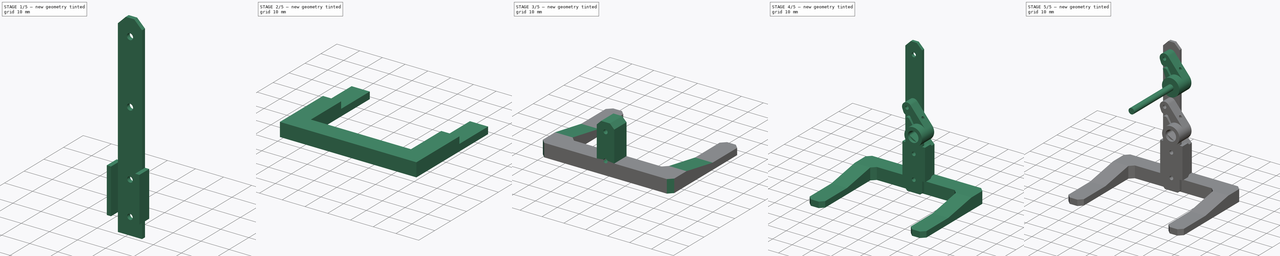
[diagram: build sequence overview — one tinted view per stage of 5, left to right]
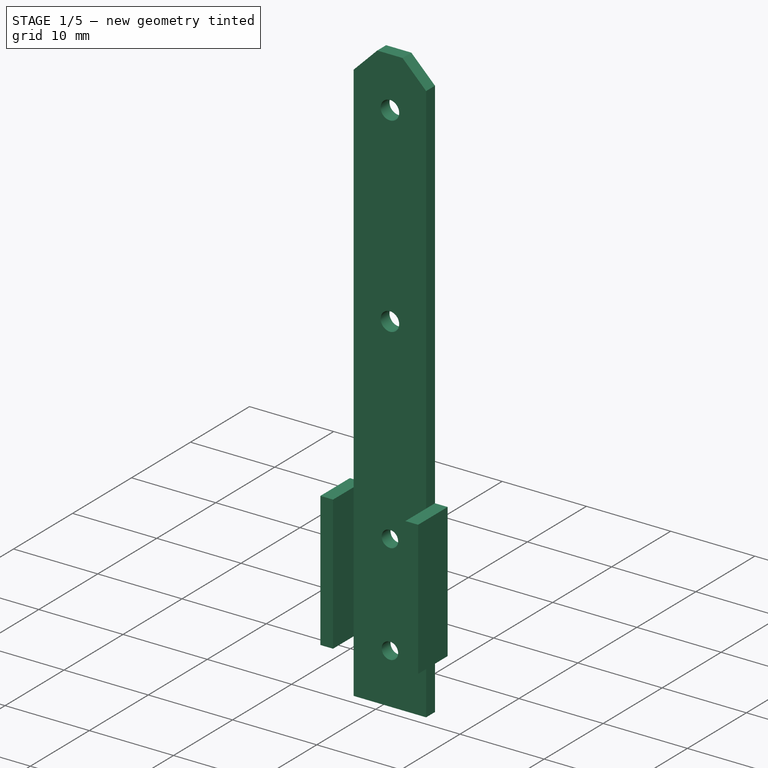
[diagram: stage 1 of 5 — iso view after this stage's code; geometry added in this stage tinted green]
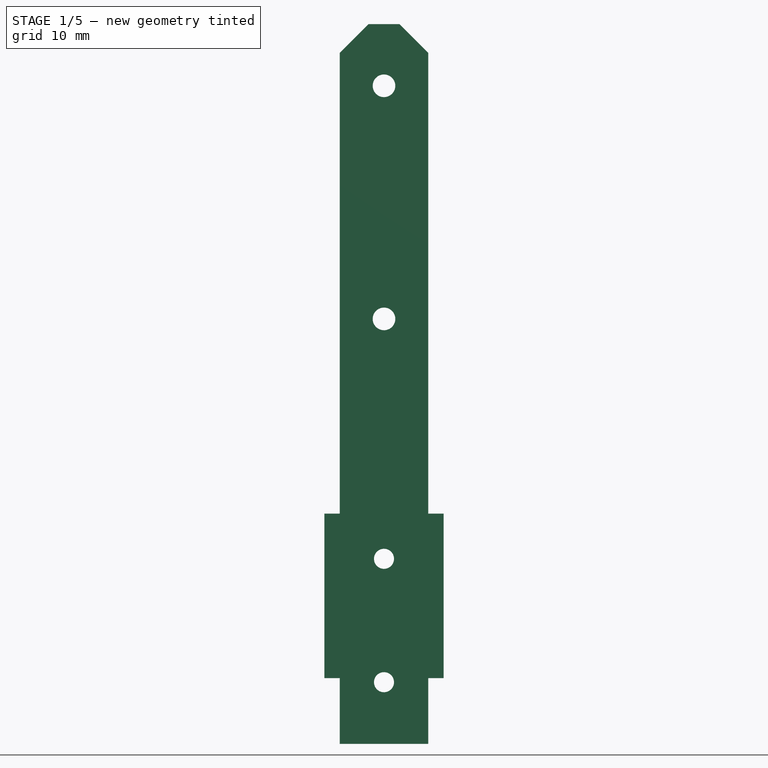
[diagram: stage 1 of 5 — front view after this stage's code; geometry added in this stage tinted green]
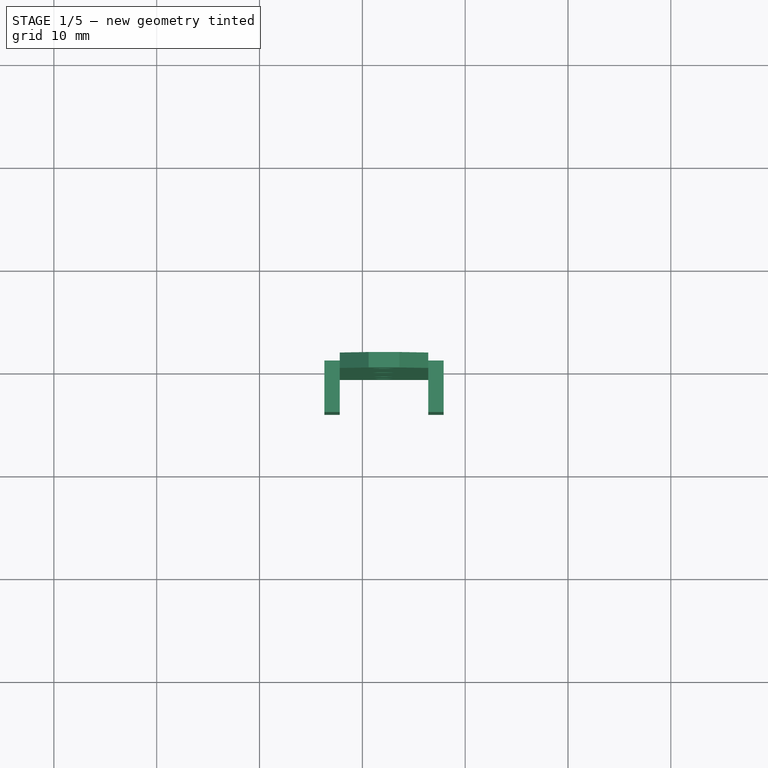
[diagram: stage 1 of 5 — top view after this stage's code; geometry added in this stage tinted green]
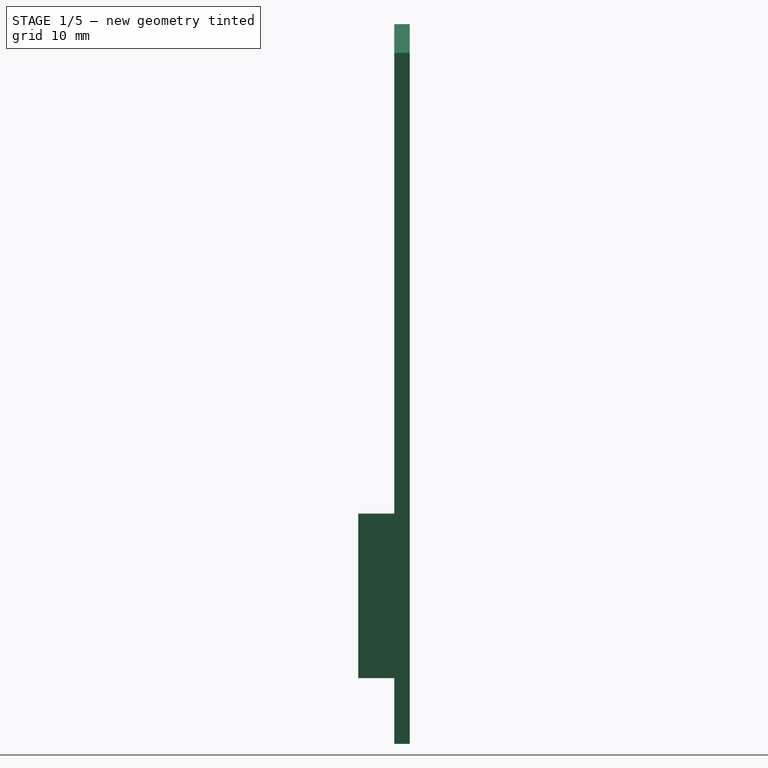
[diagram: stage 1 of 5 — right view after this stage's code; geometry added in this stage tinted green]
FCSTD DOCUMENT  (FreeCAD 2022.709R28846 (Git))
Label: robot_parallel_crank_01
License: Other
objects: Sketcher::SketchObject×8, PartDesign::Pad×7, PartDesign::SubShapeBinder×5, Part::FeaturePython×4, Part::Feature×3, PartDesign::Body×3, PartDesign::Chamfer×3, PartDesign::Plane×1, PartDesign::Draft×1, PartDesign::Pocket×1
note: 60 computed .brp shape members not serialized (recipe doc carries the construction recipe); baked Part::Feature solids carry a one-line shape summary decoded from their .brp

FEATURE [PartDesign::SubShapeBinder] Binder001  label="Binder001(link_free_grip_left)"
  BindCopyOnChange = 0
  BindMode = 0
  ClaimChildren = false
  Context = -> Body002 [Binder001.]
  FillStyle = 0
  Fuse = false
  MakeFace = true
  OffsetFill = false
  OffsetIntersection = false
  OffsetJoinType = 0
  OffsetOpenResult = false
  PartialLoad = false
  Relative = true
  Support = -> [Aruku_link_free_grip_v1001_solid]
  TreeRank = 63
  _Version = 8
FEATURE [PartDesign::SubShapeBinder] Binder002  label="Binder002(link_motor_60deg_left)"
  BindCopyOnChange = 0
  BindMode = 0
  ClaimChildren = false
  Context = -> Body002 [Binder002.]
  FillStyle = 0
  Fuse = false
  MakeFace = true
  OffsetFill = false
  OffsetIntersection = false
  OffsetJoinType = 0
  OffsetOpenResult = false
  PartialLoad = false
  Relative = true
  Support = -> [Aruku_link_motor_60deg_v1001_solid]
  TreeRank = 64
  _Version = 8
FEATURE [PartDesign::SubShapeBinder] Binder003  label="Binder003(motor)"
  BindCopyOnChange = 0
  BindMode = 0
  ClaimChildren = false
  Context = -> Body002 [Binder003.]
  FillStyle = 0
  Fuse = false
  MakeFace = true
  OffsetFill = false
  OffsetIntersection = false
  OffsetJoinType = 0
  OffsetOpenResult = false
  PartialLoad = false
  Relative = true
  Support = -> [Compound]
  TreeRank = 65
  _Version = 8
FEATURE [Sketcher::SketchObject] Sketch006
  ArcFitTolerance = 1e-06
  AttachmentSupport = -> [Binder003]
  ExternalGeometry = -> [Binder003]
  FullyConstrained = true
  MapMode = 5
  Placement = pos=(-7.1145e-05,-19.1,0.000123226) rot=(1,-2e-06,-2e-06;1.57079rad)
  Support = -> [Binder003]
  TreeRank = 66
  sketch-geometry (10):
    g0: LineSegment StartX=7.80606 StartY=0.518036 StartZ=0 EndX=16.4061 EndY=0.518036 EndZ=0
    g1: LineSegment StartX=16.4061 StartY=0.518036 StartZ=0 EndX=16.4061 EndY=-69.482 EndZ=0
    g2: LineSegment StartX=16.4061 StartY=-69.482 StartZ=0 EndX=7.80606 EndY=-69.482 EndZ=0
    g3: LineSegment StartX=7.80606 StartY=-69.482 StartZ=0 EndX=7.80606 EndY=0.518036 EndZ=0
    g4: Circle CenterX=12.1061 CenterY=-5.48196 CenterZ=0 NormalX=0 NormalY=0 NormalZ=1 AngleXU=0 Radius=1.1
    g5: Circle CenterX=12.1061 CenterY=-28.152 CenterZ=0 NormalX=0 NormalY=0 NormalZ=1 AngleXU=0 Radius=1.1
    g6: LineSegment [constr] StartX=12.1061 StartY=-5.48196 StartZ=0 EndX=16.4061 EndY=-5.48196 EndZ=0
    g7: LineSegment [constr] StartX=12.1061 StartY=-5.48196 StartZ=0 EndX=7.80606 EndY=-5.48196 EndZ=0
    g8: Circle CenterX=12.1061 CenterY=-51.482 CenterZ=0 NormalX=0 NormalY=0 NormalZ=1 AngleXU=0 Radius=0.975
    g9: Circle CenterX=12.1061 CenterY=-63.482 CenterZ=0 NormalX=0 NormalY=0 NormalZ=1 AngleXU=0 Radius=0.975
  constraints (30):
    c: Coincident(g0,g1)
    c: Coincident(g1,g2)
    c: Coincident(g2,g3)
    c: Coincident(g3,g0)
    c: Horizontal(g0)
    c: Horizontal(g2)
    c: Vertical(g1)
    c: Vertical(g3)
    c: DistanceX(g2,g2) = 8.6
    c: Vertical(g5,g4)
    c: Diameter(g4) = 2.2
    c: Equal(g4,g5)
    c: Horizontal(g4,g-4)
    c: Horizontal(g5,g-3)
    c: Coincident(g6,g4)
    c: PointOnObject(g6,g1)
    c: Horizontal(g6)
    c: Coincident(g7,g4)
    c: PointOnObject(g7,g3)
    c: Horizontal(g7)
    c: Equal(g7,g6)
    c: Distance(g4,g0) = 6
    c: DistanceX(g-4,g4) = 12
    c: DistanceY(g3,g3) = 70
    c: Vertical(g9,g8)
    c: Vertical(g8,g5)
    c: Diameter(g8) = 1.95
    c: Equal(g8,g9)
    c: DistanceY(g9,g8) = 12
    c: Distance(g9,g2) = 6
FEATURE [PartDesign::Pad] Pad005
  ClaimChildren = false
  Direction = (1,1,1)
  Fit = 0
  FitJoin = 0
  InnerFit = 0
  InnerFitJoin = 0
  InnerTaperAngle = 0
  InnerTaperAngleRev = 0
  Length = 1.5
  Length2 = 100
  Linearize = true
  NewSolid = false
  Profile = -> Sketch006
  Suppress = false
  TreeRank = 67
  Type = 0
  _ProfileBasedVersion = 1
FEATURE [Sketcher::SketchObject] Sketch007
  ArcFitTolerance = 1e-06
  AttachmentSupport = -> [Pad005]
  ExternalGeometry = -> [Pad005]
  FullyConstrained = true
  MapMode = 5
  Placement = pos=(-7.1145e-05,-19.1,0.000123226) rot=(1e-06,0.707109,0.707105;3.14159rad)
  Support = -> [Pad005]
  TreeRank = 68
  sketch-geometry (8):
    g0: LineSegment StartX=-16.4061 StartY=-47.082 StartZ=0 EndX=-17.9061 EndY=-47.082 EndZ=0
    g1: LineSegment StartX=-17.9061 StartY=-47.082 StartZ=0 EndX=-17.9061 EndY=-63.082 EndZ=0
    g2: LineSegment StartX=-17.9061 StartY=-63.082 StartZ=0 EndX=-16.4061 EndY=-63.082 EndZ=0
    g3: LineSegment StartX=-16.4061 StartY=-63.082 StartZ=0 EndX=-16.4061 EndY=-47.082 EndZ=0
    g4: LineSegment StartX=-7.80606 StartY=-47.082 StartZ=0 EndX=-6.30606 EndY=-47.082 EndZ=0
    g5: LineSegment StartX=-6.30606 StartY=-47.082 StartZ=0 EndX=-6.30606 EndY=-63.082 EndZ=0
    g6: LineSegment StartX=-6.30606 StartY=-63.082 StartZ=0 EndX=-7.80606 EndY=-63.082 EndZ=0
    g7: LineSegment StartX=-7.80606 StartY=-63.082 StartZ=0 EndX=-7.80606 EndY=-47.082 EndZ=0
  constraints (24):
    c: Coincident(g0,g1)
    c: Coincident(g1,g2)
    c: Coincident(g2,g3)
    c: Coincident(g3,g0)
    c: Horizontal(g0)
    c: Horizontal(g2)
    c: Vertical(g1)
    c: Vertical(g3)
    c: PointOnObject(g0,g-3)
    c: Coincident(g4,g5)
    c: Coincident(g5,g6)
    c: Coincident(g6,g7)
    c: Coincident(g7,g4)
    c: Horizontal(g4)
    c: Horizontal(g6)
    c: Vertical(g5)
    c: Vertical(g7)
    c: PointOnObject(g4,g-4)
    c: Equal(g7,g3)
    c: Equal(g0,g4)
    c: Horizontal(g2,g6)
    c: DistanceX(g0,g0) = 1.5
    c: DistanceY(g-5,g2) = 0.4
    c: DistanceY(g1,g1) = 16
FEATURE [PartDesign::Pad] Pad006
  BaseFeature = -> Pad005
  ClaimChildren = false
  Direction = (1,1,1)
  Fit = 0
  FitJoin = 0
  InnerFit = 0
  InnerFitJoin = 0
  InnerTaperAngle = 0
  InnerTaperAngleRev = 0
  Length = 5
  Length2 = 4
  Linearize = true
  NewSolid = false
  Profile = -> Sketch007
  Refine = true
  Reversed = true
  Suppress = false
  TreeRank = 69
  Type = 0
  _ProfileBasedVersion = 1
FEATURE [PartDesign::Chamfer] Chamfer001
  Angle = 45
  Base = -> Pad006 [Edge2,Edge1]
  BaseFeature = -> Pad006
  ChamferType = 0
  FlipDirection = false
  NewSolid = false
  Size = 2.8
  Size2 = 1
  SupportTransform = false
  Suppress = false
  TreeRank = 70
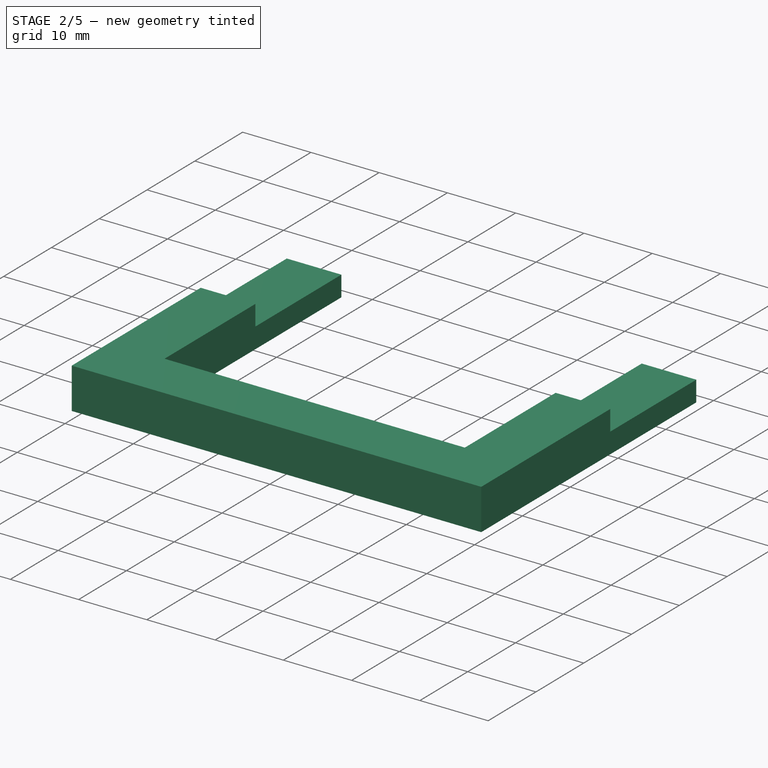
[diagram: stage 2 of 5 — iso view after this stage's code; geometry added in this stage tinted green]
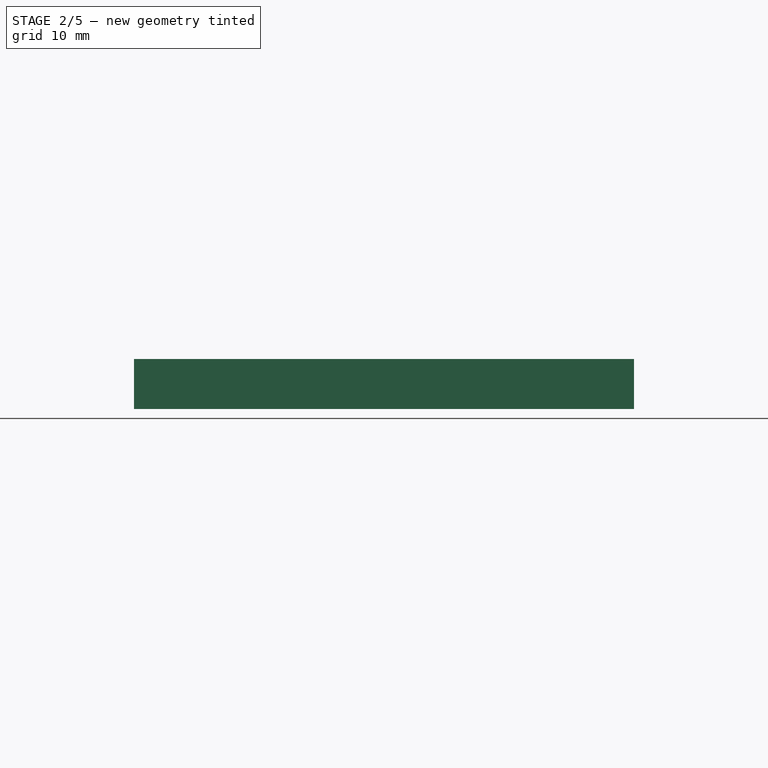
[diagram: stage 2 of 5 — front view after this stage's code; geometry added in this stage tinted green]
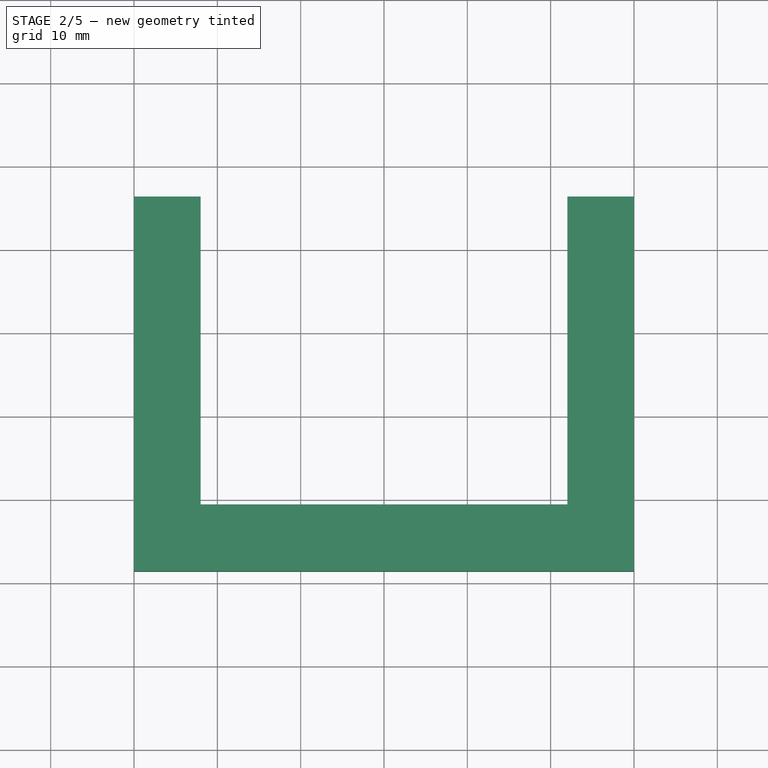
[diagram: stage 2 of 5 — top view after this stage's code; geometry added in this stage tinted green]
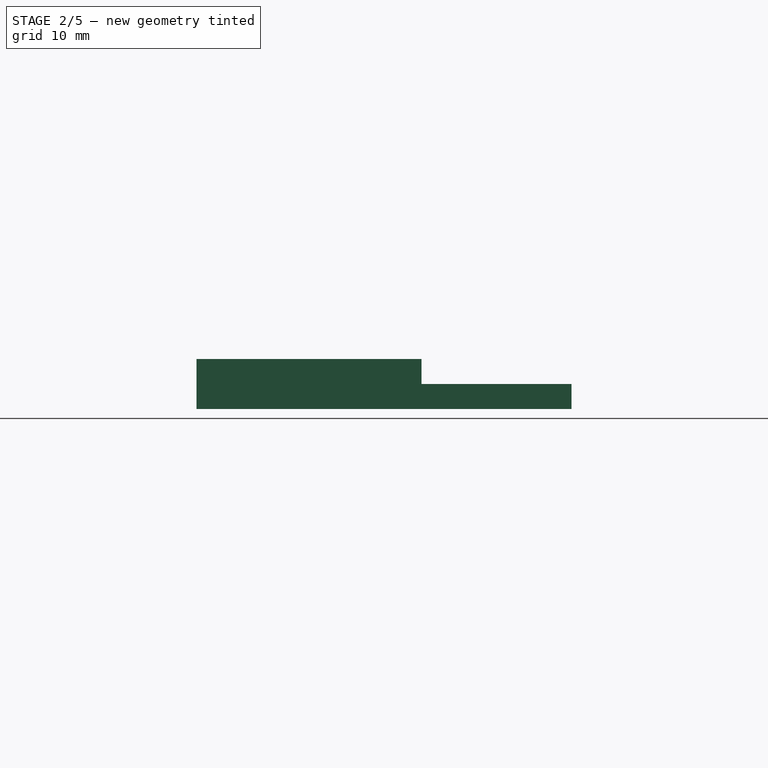
[diagram: stage 2 of 5 — right view after this stage's code; geometry added in this stage tinted green]
FEATURE [PartDesign::Chamfer] Chamfer002
  Angle = 45
  Base = -> Chamfer001 [Edge44,Edge54,Edge51,Edge41,Edge56,Edge55]
  BaseFeature = -> Chamfer001
  ChamferType = 0
  FlipDirection = false
  NewSolid = false
  Size = 1
  Size2 = 1
  SupportTransform = false
  Suppress = false
  TreeRank = 71
FEATURE [PartDesign::SubShapeBinder] Binder004  label="Binder004(leg_left)"
  BindCopyOnChange = 0
  BindMode = 0
  ClaimChildren = false
  Context = -> Body [Binder004.]
  FillStyle = 0
  Fuse = false
  MakeFace = true
  OffsetFill = false
  OffsetIntersection = false
  OffsetJoinType = 0
  OffsetOpenResult = false
  PartialLoad = false
  Relative = true
  Support = -> [Body002]
  TreeRank = 73
  _Version = 8
FEATURE [Sketcher::SketchObject] Sketch
  ArcFitTolerance = 1e-06
  AttachmentSupport = -> [Binder004]
  ExternalGeometry = -> [Binder004]
  FullyConstrained = true
  MapMode = 5
  Placement = pos=(0,-5.28799e-07,-0.0819635) rot=(1,0,0;3.14159rad)
  Support = -> [Binder004]
  TreeRank = 18
  sketch-geometry (9):
    g0: LineSegment StartX=-30 StartY=28.6005 StartZ=0 EndX=-30 EndY=-16.3995 EndZ=0
    g1: LineSegment StartX=-30 StartY=-16.3995 StartZ=0 EndX=-22 EndY=-16.3995 EndZ=0
    g2: LineSegment StartX=-22 StartY=-16.3995 StartZ=0 EndX=-22 EndY=20.6005 EndZ=0
    g3: LineSegment StartX=-22 StartY=20.6005 StartZ=0 EndX=22 EndY=20.6005 EndZ=0
    g4: LineSegment StartX=22 StartY=20.6005 StartZ=0 EndX=22 EndY=-16.3995 EndZ=0
    g5: LineSegment StartX=22 StartY=-16.3995 StartZ=0 EndX=30 EndY=-16.3995 EndZ=0
    g6: LineSegment StartX=30 StartY=-16.3995 StartZ=0 EndX=30 EndY=28.6005 EndZ=0
    g7: LineSegment StartX=30 StartY=28.6005 StartZ=0 EndX=-30 EndY=28.6005 EndZ=0
    g8: LineSegment [constr] StartX=-22 StartY=20.6005 StartZ=0 EndX=-22 EndY=28.6005 EndZ=0
  constraints (26):
    c: Vertical(g0)
    c: Coincident(g0,g1)
    c: Horizontal(g1)
    c: Coincident(g1,g2)
    c: Vertical(g2)
    c: Coincident(g2,g3)
    c: Horizontal(g3)
    c: Coincident(g3,g4)
    c: Vertical(g4)
    c: Coincident(g4,g5)
    c: Horizontal(g5)
    c: Coincident(g5,g6)
    c: Vertical(g6)
    c: Coincident(g6,g7)
    c: Coincident(g7,g0)
    c: Symmetric(g0,g6,g-2)
    c: DistanceX(g7,g7) = 60
    c: Equal(g0,g6)
    c: Equal(g5,g1)
    c: DistanceX(g1,g1) = 8
    c: Coincident(g8,g2)
    c: PointOnObject(g8,g7)
    c: Vertical(g8)
    c: Equal(g8,g1)
    c: DistanceY(g0,g0) = 45
    c: PointOnObject(g-3,g3)
FEATURE [PartDesign::Pad] Pad
  ClaimChildren = false
  Direction = (1,1,1)
  Fit = 0
  FitJoin = 0
  InnerFit = 0
  InnerFitJoin = 0
  InnerTaperAngle = 0
  InnerTaperAngleRev = 0
  Length = 3
  Length2 = 100
  Linearize = true
  NewSolid = false
  Profile = -> Sketch
  Reversed = true
  Suppress = false
  TreeRank = 19
  Type = 0
  _ProfileBasedVersion = 1
FEATURE [Sketcher::SketchObject] Sketch001
  ArcFitTolerance = 1e-06
  AttachmentSupport = -> [Pad]
  ExternalGeometry = -> [Pad]
  FullyConstrained = true
  MapMode = 5
  Placement = pos=(0,1.88261e-05,2.91804) rot=(-1,0,0;6e-06rad)
  Support = -> [Pad]
  TreeRank = 20
  sketch-geometry (8):
    g0: LineSegment StartX=-30 StartY=-1.60048 StartZ=0 EndX=-22 EndY=-1.60048 EndZ=0
    g1: LineSegment StartX=-22 StartY=-1.60048 StartZ=0 EndX=-22 EndY=-20.6005 EndZ=0
    g2: LineSegment StartX=-22 StartY=-20.6005 StartZ=0 EndX=22 EndY=-20.6005 EndZ=0
    g3: LineSegment StartX=22 StartY=-1.60048 StartZ=0 EndX=30 EndY=-1.60048 EndZ=0
    g4: LineSegment StartX=30 StartY=-1.60048 StartZ=0 EndX=30 EndY=-28.6005 EndZ=0
    g5: LineSegment StartX=30 StartY=-28.6005 StartZ=0 EndX=-30 EndY=-28.6005 EndZ=0
    g6: LineSegment StartX=-30 StartY=-28.6005 StartZ=0 EndX=-30 EndY=-1.60048 EndZ=0
    g7: LineSegment StartX=22 StartY=-20.6005 StartZ=0 EndX=22 EndY=-1.60048 EndZ=0
  constraints (20):
    c: PointOnObject(g0,g-5)
    c: PointOnObject(g0,g-4)
    c: Horizontal(g0)
    c: Coincident(g0,g1)
    c: Coincident(g1,g-4)
    c: Coincident(g1,g2)
    c: Coincident(g2,g-3)
    c: PointOnObject(g3,g-3)
    c: PointOnObject(g3,g-6)
    c: Horizontal(g3)
    c: Coincident(g3,g4)
    c: Coincident(g4,g-6)
    c: Coincident(g4,g5)
    c: Coincident(g5,g-5)
    c: Coincident(g5,g6)
    c: Coincident(g6,g0)
    c: Coincident(g7,g2)
    c: Coincident(g7,g3)
    c: Equal(g7,g1)
    c: DistanceY(g6,g6) = 27
FEATURE [PartDesign::Pad] Pad001
  BaseFeature = -> Pad
  ClaimChildren = false
  Direction = (1,1,1)
  Fit = 0
  FitJoin = 0
  InnerFit = 0
  InnerFitJoin = 0
  InnerTaperAngle = 0
  InnerTaperAngleRev = 0
  Length = 3
  Length2 = 100
  Linearize = true
  NewSolid = false
  Profile = -> Sketch001
  Suppress = false
  TreeRank = 21
  Type = 0
  _ProfileBasedVersion = 1
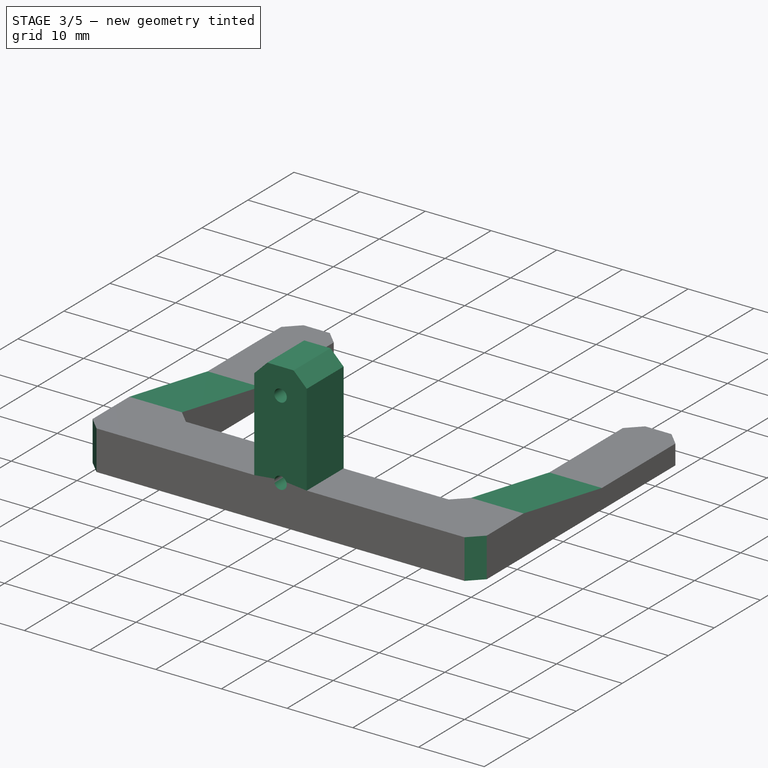
[diagram: stage 3 of 5 — iso view after this stage's code; geometry added in this stage tinted green]
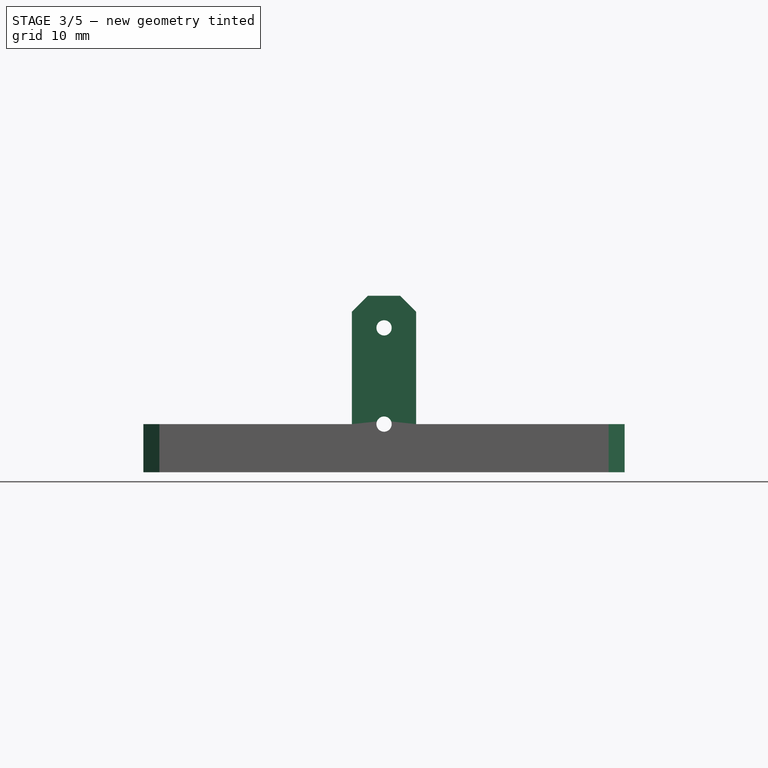
[diagram: stage 3 of 5 — front view after this stage's code; geometry added in this stage tinted green]
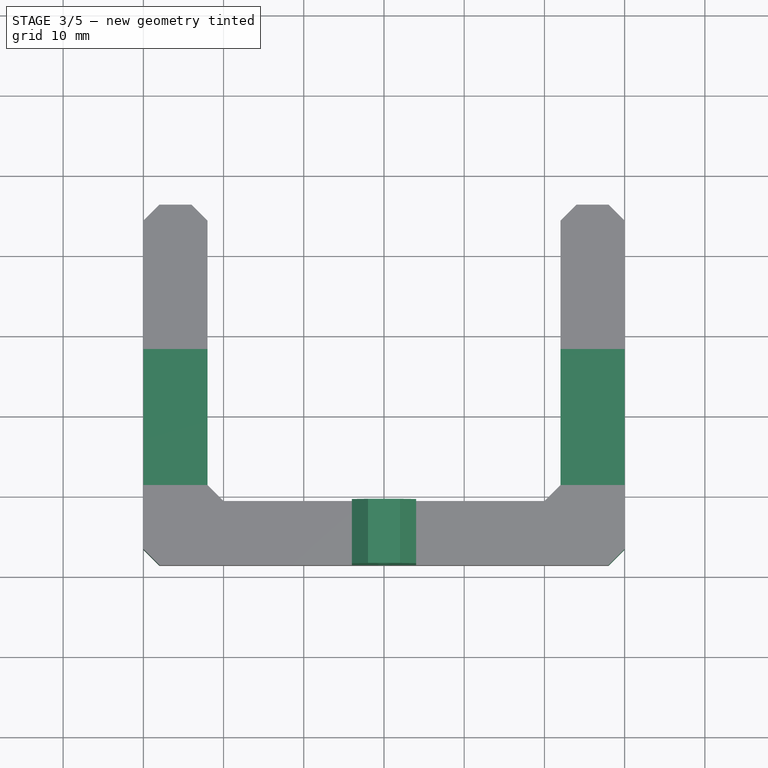
[diagram: stage 3 of 5 — top view after this stage's code; geometry added in this stage tinted green]
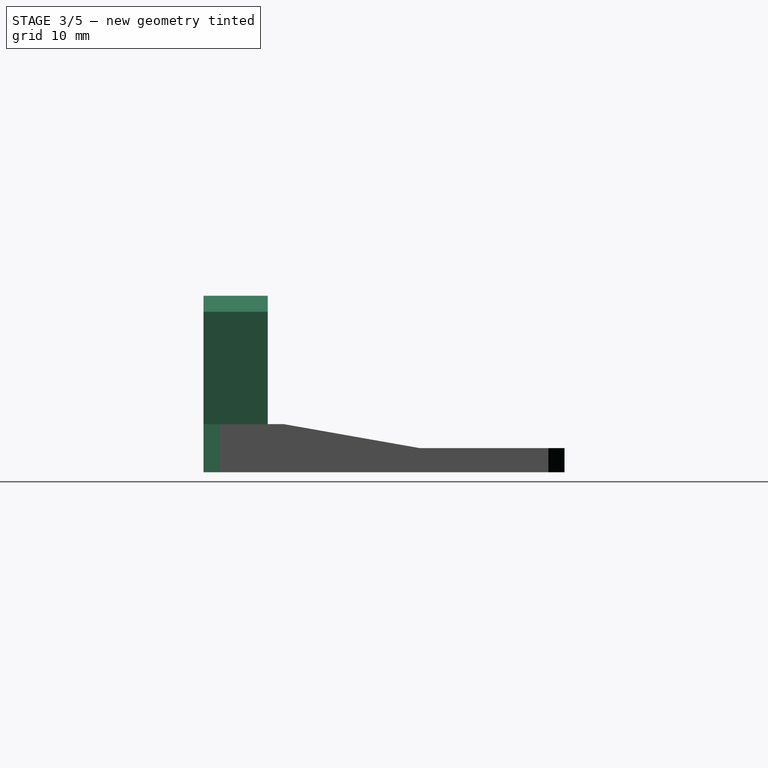
[diagram: stage 3 of 5 — right view after this stage's code; geometry added in this stage tinted green]
FEATURE [PartDesign::Draft] Draft
  Angle = 80
  Base = -> Pad001 [Face13,Face20]
  BaseFeature = -> Pad001
  NeutralPlane = -> Pad001 [Face15]
  NewSolid = false
  SupportTransform = false
  Suppress = false
  TreeRank = 22
FEATURE [Sketcher::SketchObject] Sketch002
  ArcFitTolerance = 1e-06
  AttachmentSupport = -> [Draft]
  ExternalGeometry = -> [Draft]
  FullyConstrained = true
  MapMode = 5
  Placement = pos=(0,3.8181e-05,5.91804) rot=(-1,0,0;6e-06rad)
  Support = -> [Draft]
  TreeRank = 23
  sketch-geometry (4):
    g0: LineSegment StartX=-4 StartY=-20.6005 StartZ=0 EndX=4 EndY=-20.6005 EndZ=0
    g1: LineSegment StartX=4 StartY=-20.6005 StartZ=0 EndX=4 EndY=-28.6005 EndZ=0
    g2: LineSegment StartX=4 StartY=-28.6005 StartZ=0 EndX=-4 EndY=-28.6005 EndZ=0
    g3: LineSegment StartX=-4 StartY=-28.6005 StartZ=0 EndX=-4 EndY=-20.6005 EndZ=0
  constraints (11):
    c: Coincident(g0,g1)
    c: Coincident(g1,g2)
    c: Coincident(g2,g3)
    c: Coincident(g3,g0)
    c: Horizontal(g2)
    c: Vertical(g1)
    c: Vertical(g3)
    c: PointOnObject(g0,g-3)
    c: PointOnObject(g1,g-4)
    c: Symmetric(g0,g0,g-2)
    c: DistanceX(g0,g0) = 8
FEATURE [PartDesign::Pad] Pad002
  BaseFeature = -> Draft
  ClaimChildren = false
  Direction = (1,1,1)
  Fit = 0
  FitJoin = 0
  InnerFit = 0
  InnerFitJoin = 0
  InnerTaperAngle = 0
  InnerTaperAngleRev = 0
  Length = 16
  Length2 = 100
  Linearize = true
  NewSolid = false
  Profile = -> Sketch002
  Suppress = false
  TreeRank = 24
  Type = 0
  _ProfileBasedVersion = 1
FEATURE [Sketcher::SketchObject] Sketch003
  ArcFitTolerance = 1e-06
  AttachmentSupport = -> [Pad002]
  ExternalGeometry = -> [Pad002,Binder004]
  FullyConstrained = true
  MapMode = 5
  Placement = pos=(0,-28.6005,0.00018452) rot=(1,0,0;1.57079rad)
  Support = -> [Pad002]
  TreeRank = 25
  sketch-geometry (2):
    g0: Circle CenterX=0.00598021 CenterY=17.918 CenterZ=0 NormalX=0 NormalY=0 NormalZ=1 AngleXU=0 Radius=0.95
    g1: Circle CenterX=0.00598021 CenterY=5.91804 CenterZ=0 NormalX=0 NormalY=0 NormalZ=1 AngleXU=0 Radius=0.95
  constraints (4):
    c: Diameter(g1) = 1.9
    c: Equal(g1,g0)
    c: Coincident(g-4,g0)
    c: Coincident(g1,g-5)
FEATURE [PartDesign::Pocket] Pocket
  BaseFeature = -> Pad002
  ClaimChildren = false
  Fit = 0
  FitJoin = 0
  InnerFit = 0
  InnerFitJoin = 0
  InnerTaperAngle = 0
  InnerTaperAngleRev = 0
  Length = 5
  Length2 = 100
  Linearize = true
  NewSolid = false
  Profile = -> Sketch003
  Refine = true
  Suppress = false
  TreeRank = 26
  Type = 1
  _ProfileBasedVersion = 1
FEATURE [PartDesign::Chamfer] Chamfer
  Angle = 45
  Base = -> Pocket [Edge16,Edge15,Edge2,Edge1,Edge56,Edge55,Edge41,Edge31,Edge45,Edge46]
  BaseFeature = -> Pocket
  ChamferType = 0
  FlipDirection = false
  NewSolid = false
  Size = 2
  Size2 = 1
  SupportTransform = false
  Suppress = false
  TreeRank = 27
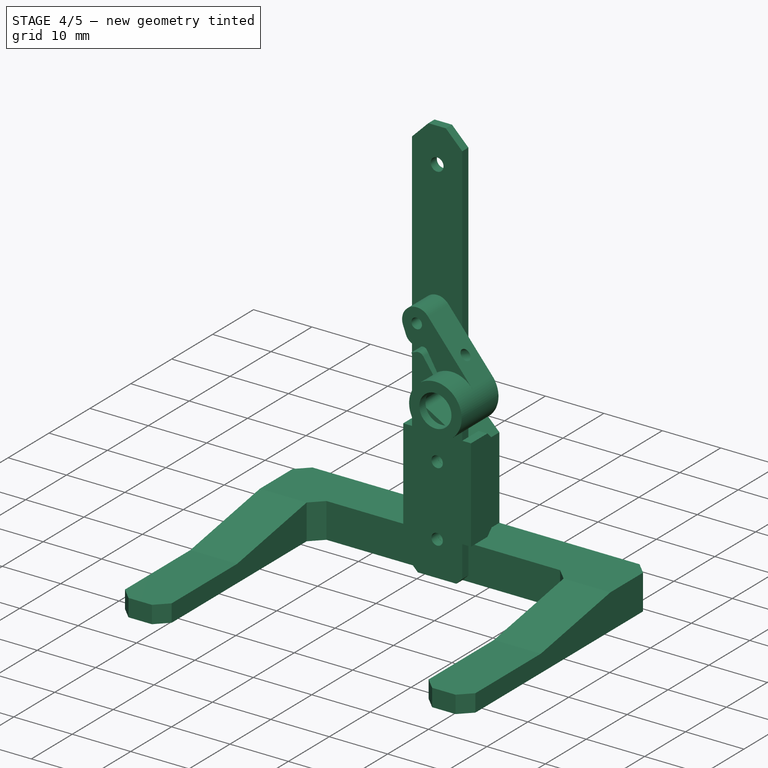
[diagram: stage 4 of 5 — iso view after this stage's code; geometry added in this stage tinted green]
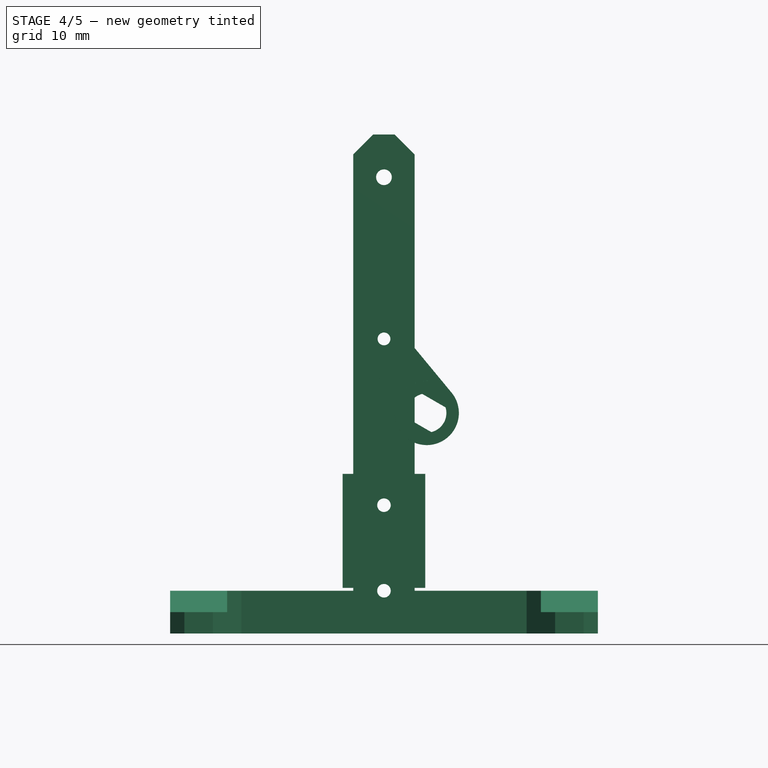
[diagram: stage 4 of 5 — front view after this stage's code; geometry added in this stage tinted green]
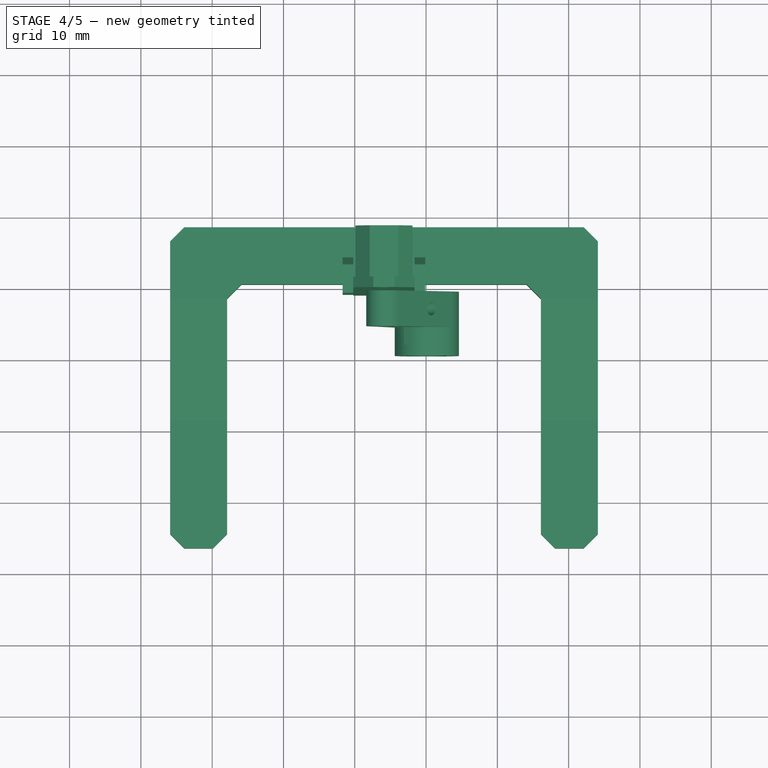
[diagram: stage 4 of 5 — top view after this stage's code; geometry added in this stage tinted green]
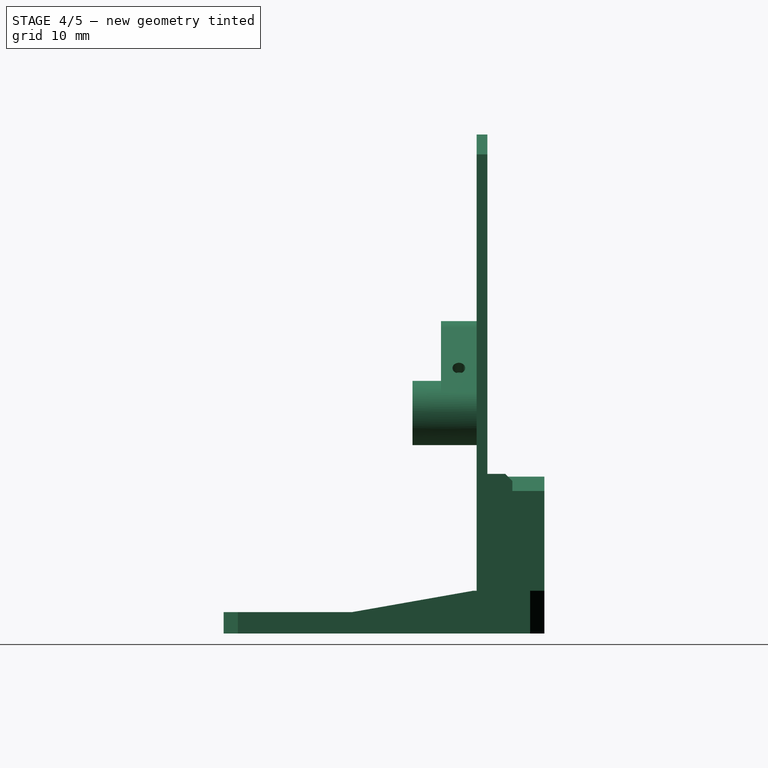
[diagram: stage 4 of 5 — right view after this stage's code; geometry added in this stage tinted green]
FEATURE [Part::Feature] Aruku_link_motor_60deg_v1001_solid  label="link_motor_60deg_left"
  Placement = pos=(0.1,-19.1,-28.15) rot=(0,-0.707107,-0.707107;3.14159rad)
  TreeRank = 51
  shape: bbox 19 x 9 x 9 mm, 1808 faces (baked)
FEATURE [Part::FeaturePython] Clone001  label="link_motor_60deg_right"  # Draft clone (typed FeaturePython)
  AttacherType = Attacher::AttachEngine3D
  Fuse = false
  Objects = -> [Aruku_link_motor_60deg_v1001_solid]
  Placement = pos=(0.1,19.1,-28.15) rot=(0.774598,0.447214,-0.447211;1.82347rad)
  Scale = (1,1,1)
  TreeRank = 52
FEATURE [PartDesign::Body] Body002  label="leg_left"
  AutoGroupSolids = false
  ClaimAllChildren = false
  ExportMode = 0
  Group = -> [Binder001,Binder002,Binder003,Sketch006,Pad005,Sketch007,Pad006,Chamfer001,Chamfer002]
  Origin = -> Origin002
  Tip = -> Chamfer002
  TreeRank = 62
  _ExportChildren = -> [Binder001,Binder002,Binder003,Pad005,Pad006,Chamfer001,Chamfer002]
  _GroupVersion = 1
FEATURE [Part::FeaturePython] Clone002  label="leg_right"  # Draft clone (typed FeaturePython)
  AttacherType = Attacher::AttachEngine3D
  Fuse = false
  Objects = -> [Body002]
  Placement = pos=(6.2,-8e-16,10.4) rot=(0,0,1;3.14159rad)
  Scale = (1,1,1)
  TreeRank = 72
FEATURE [PartDesign::Body] Body  label="feet_left"
  AutoGroupSolids = false
  ClaimAllChildren = false
  ExportMode = 0
  Group = -> [Sketch,Pad,Sketch001,Pad001,Draft,Sketch002,Pad002,Sketch003,Pocket,Chamfer,Binder004]
  Origin = -> Origin
  Placement = pos=(12.1,0,-69.4) rot=(0,0,1;0rad)
  Tip = -> Chamfer
  TreeRank = 17
  _ExportChildren = -> [Pad,Pad001,Draft,Pad002,Pocket,Chamfer,Binder004]
  _GroupVersion = 1
FEATURE [Part::FeaturePython] Clone003  label="feet_right"  # Draft clone (typed FeaturePython)
  AttacherType = Attacher::AttachEngine3D
  Fuse = false
  Objects = -> [Body]
  Placement = pos=(-5.9,2.2e-15,-59) rot=(0,0,1;3.14159rad)
  Scale = (1,1,1)
  TreeRank = 74
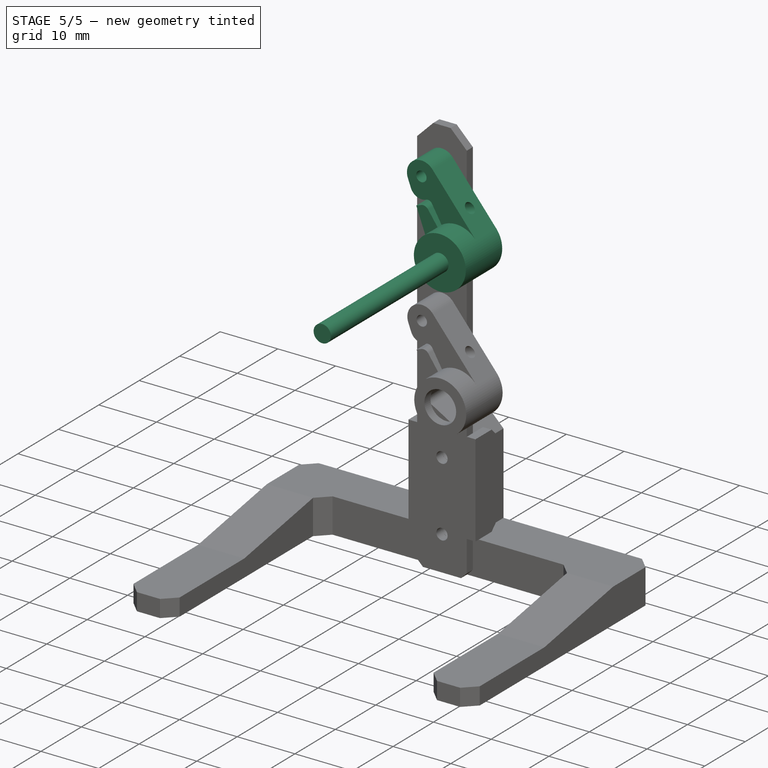
[diagram: stage 5 of 5 — iso view after this stage's code; geometry added in this stage tinted green]
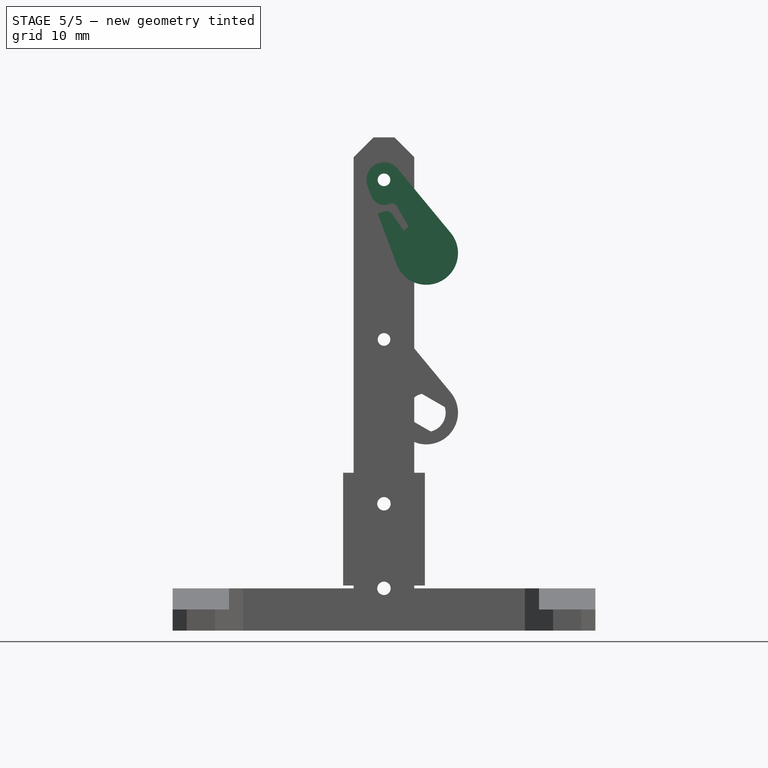
[diagram: stage 5 of 5 — front view after this stage's code; geometry added in this stage tinted green]
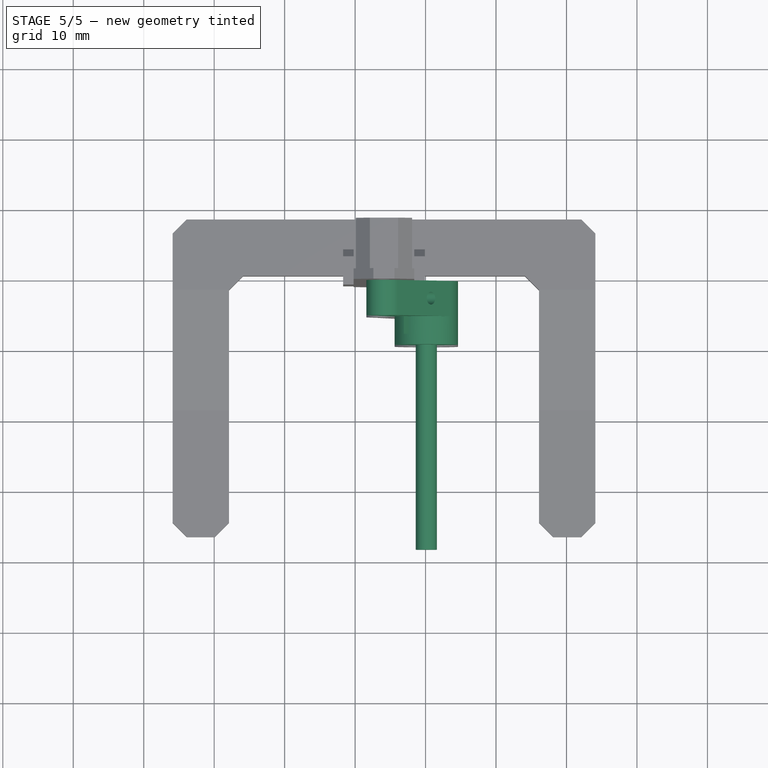
[diagram: stage 5 of 5 — top view after this stage's code; geometry added in this stage tinted green]
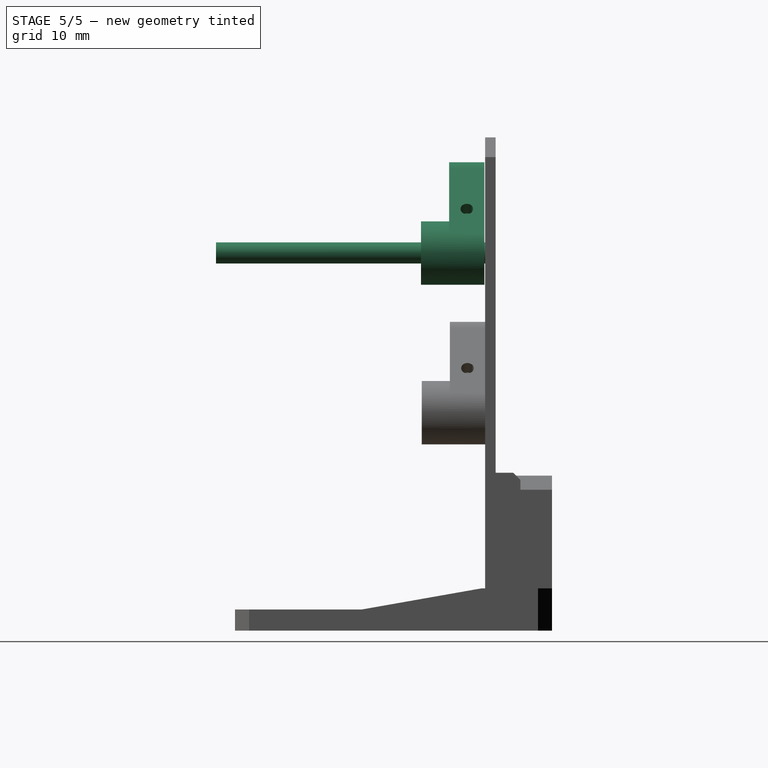
[diagram: stage 5 of 5 — right view after this stage's code; geometry added in this stage tinted green]
FEATURE [Part::Feature] Compound  label="motor"
  Placement = pos=(0,-9.4,0) rot=(0.730842,0.482634,0.482633;4.40384rad)
  TreeRank = 28
  shape: bbox 42.53 x 38.2 x 66 mm, 234 faces, 3 solids (baked)
FEATURE [PartDesign::SubShapeBinder] Binder  label="Binder(motor)"
  BindCopyOnChange = 0
  BindMode = 0
  ClaimChildren = false
  Context = -> Body001 [Binder.]
  FillStyle = 0
  Fuse = false
  MakeFace = true
  OffsetFill = false
  OffsetIntersection = false
  OffsetJoinType = 0
  OffsetOpenResult = false
  PartialLoad = false
  Relative = true
  Support = -> [Compound]
  TreeRank = 39
  _Version = 8
FEATURE [PartDesign::Plane] DatumPlane
  AttachmentOffset = pos=(0,0,-9.4) rot=(0,0,1;0rad)
  AttachmentSupport = -> [Binder]
  Length = 10
  MapMode = 5
  MinimumLength = 10
  MinimumWidth = 10
  Placement = pos=(1e-15,2.60842e-10,-4.1e-15) rot=(1,-2e-06,-2e-06;1.57079rad)
  ResizeMode = 0
  Support = -> [Binder]
  TreeRank = 40
  Width = 10
FEATURE [Sketcher::SketchObject] Sketch004
  ArcFitTolerance = 1e-06
  AttachmentSupport = -> [DatumPlane]
  ExternalGeometry = -> [Binder]
  FullyConstrained = true
  MapMode = 5
  Placement = pos=(1e-15,2.60842e-10,-4.1e-15) rot=(1,-2e-06,-2e-06;1.57079rad)
  Support = -> [DatumPlane]
  TreeRank = 41
  sketch-geometry (1):
    g0: Circle CenterX=0.106057 CenterY=-5.48196 CenterZ=0 NormalX=0 NormalY=0 NormalZ=1 AngleXU=0 Radius=1.5
  constraints (2):
    c: Coincident(g0,g-3)
    c: Diameter(g0) = 3
FEATURE [PartDesign::Pad] Pad003
  ClaimChildren = false
  Direction = (1,1,1)
  Fit = 0
  FitJoin = 0
  InnerFit = 0
  InnerFitJoin = 0
  InnerTaperAngle = 0
  InnerTaperAngleRev = 0
  Length = 10
  Length2 = 100
  Linearize = true
  Midplane = true
  NewSolid = false
  Placement = pos=(1e-15,2.60842e-10,-4.1e-15) rot=(1,-2e-06,-2e-06;1.57079rad)
  Profile = -> Sketch004
  Suppress = false
  TreeRank = 42
  Type = 3
  UpToFace = -> Binder [Face74]
  _ProfileBasedVersion = 1
FEATURE [Sketcher::SketchObject] Sketch005
  ArcFitTolerance = 1e-06
  AttachmentSupport = -> [Pad003]
  ExternalGeometry = -> [Pad003]
  FullyConstrained = true
  MapMode = 5
  Placement = pos=(1e-15,2.60842e-10,-4.1e-15) rot=(-1,2e-06,-2e-06;1.5708rad)
  Support = -> [Pad003]
  TreeRank = 43
  sketch-geometry (1):
    g0: Circle CenterX=0.106057 CenterY=5.48196 CenterZ=0 NormalX=0 NormalY=0 NormalZ=1 AngleXU=0 Radius=1.5
  constraints (2):
    c: Coincident(g0,g-3)
    c: Equal(g0,g-3)
FEATURE [PartDesign::Pad] Pad004
  BaseFeature = -> Pad003
  ClaimChildren = false
  Direction = (1,1,1)
  Fit = 0
  FitJoin = 0
  InnerFit = 0
  InnerFitJoin = 0
  InnerTaperAngle = 0
  InnerTaperAngleRev = 0
  Length = 10
  Length2 = 100
  Linearize = true
  NewSolid = false
  Placement = pos=(1e-15,2.60842e-10,-4.1e-15) rot=(1,-2e-06,-2e-06;1.57079rad)
  Profile = -> Sketch005
  Suppress = false
  TreeRank = 44
  Type = 3
  UpToFace = -> Binder [Face73]
  _ProfileBasedVersion = 1
FEATURE [PartDesign::Body] Body001  label="free_pin"
  AutoGroupSolids = false
  ClaimAllChildren = false
  ExportMode = 0
  Group = -> [Binder,DatumPlane,Sketch004,Pad003,Sketch005,Pad004]
  Origin = -> Origin001
  Tip = -> Pad004
  TreeRank = 38
  _ExportChildren = -> [Binder,DatumPlane,Pad003,Pad004]
  _GroupVersion = 1
FEATURE [Part::Feature] Aruku_link_free_grip_v1001_solid  label="link_free_grip_left"
  AttacherType = Attacher::AttachEngine3D
  Placement = pos=(0.1,-19,-5.5) rot=(0,-0.707107,-0.707107;3.14159rad)
  TreeRank = 48
  shape: bbox 19 x 9 x 9 mm, 1570 faces (baked)
FEATURE [Part::FeaturePython] Clone  label="link_free_grip_right"  # Draft clone (typed FeaturePython)
  AttacherType = Attacher::AttachEngine3D
  Fuse = false
  Objects = -> [Aruku_link_free_grip_v1001_solid]
  Placement = pos=(0.1,19,-5.5) rot=(0.774598,0.447214,-0.447211;1.82347rad)
  Scale = (1,1,1)
  TreeRank = 49
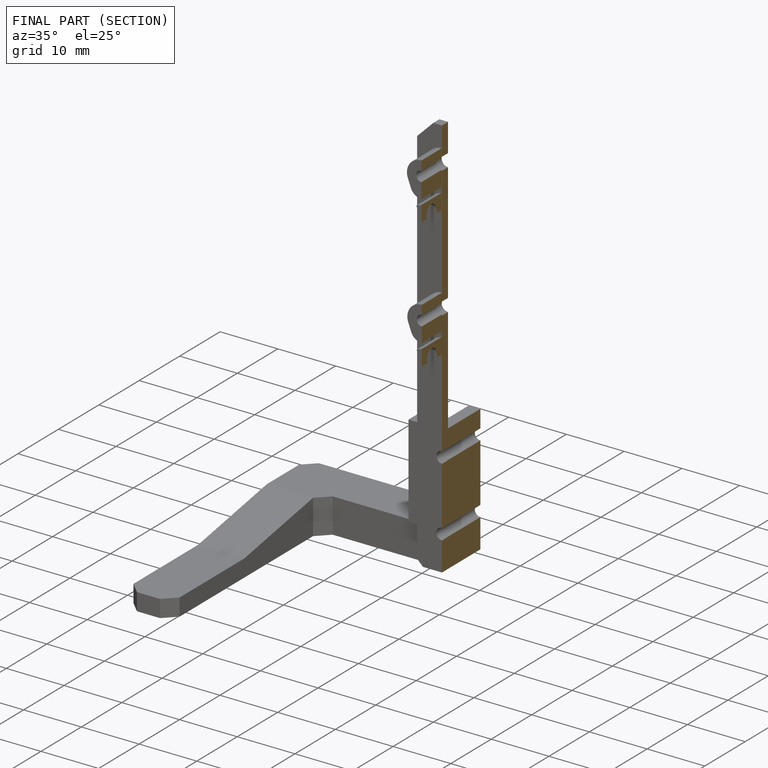
[diagram: finished part — half-section view (interior)]
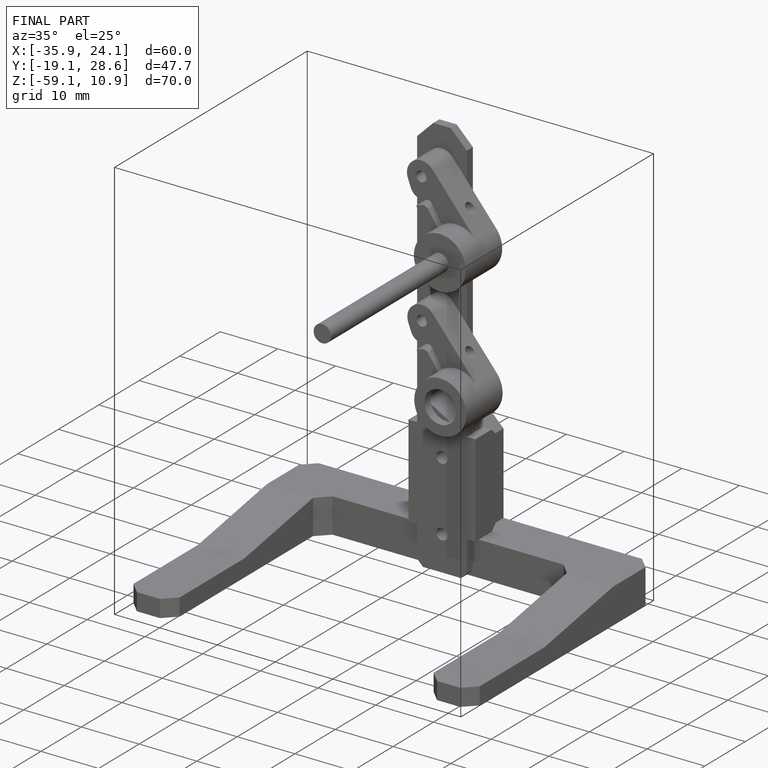
[diagram: finished part — iso view with bounding-box wireframe]
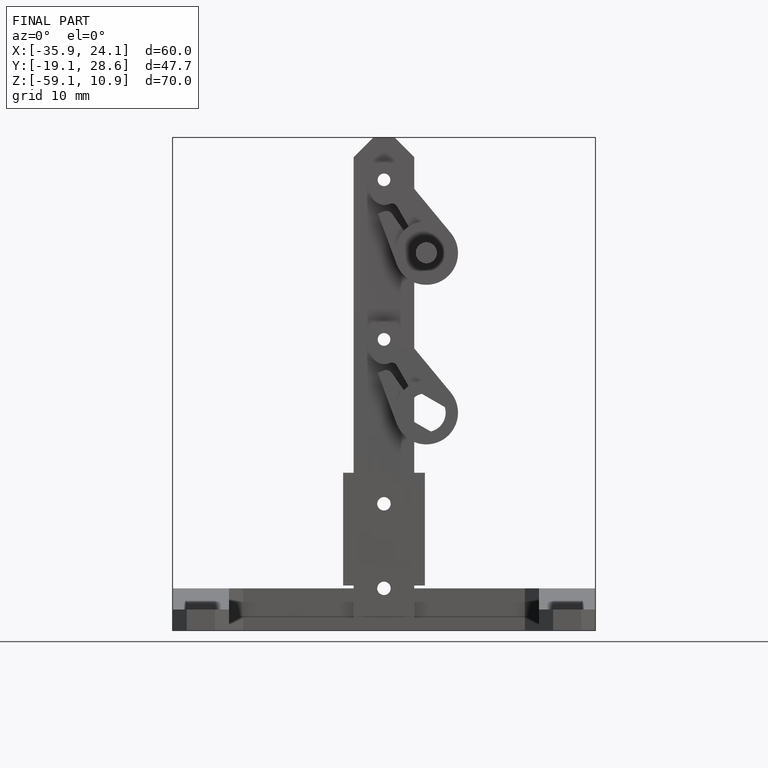
[diagram: finished part — front view with bounding-box wireframe]
